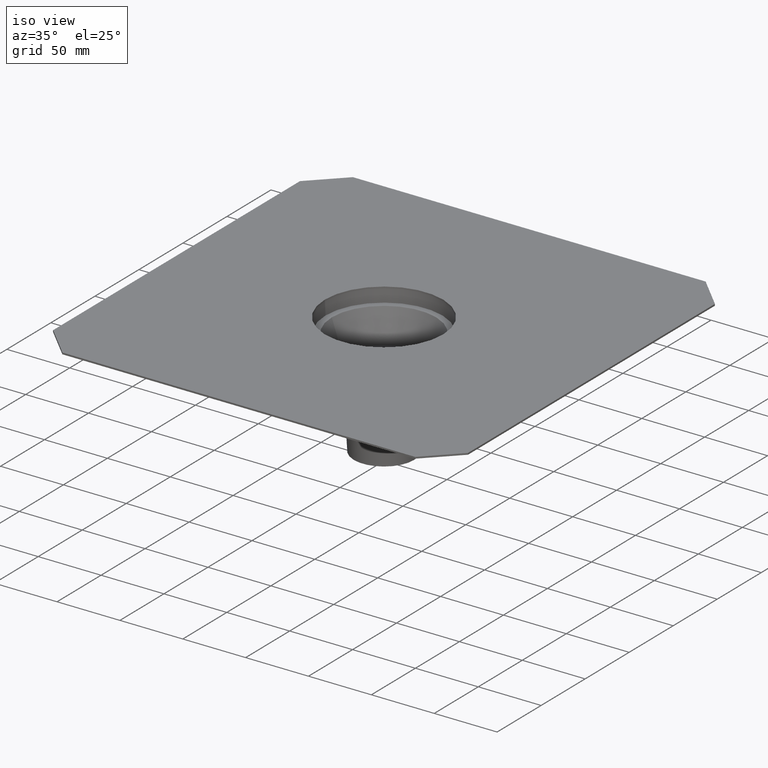
[diagram: clean part render]
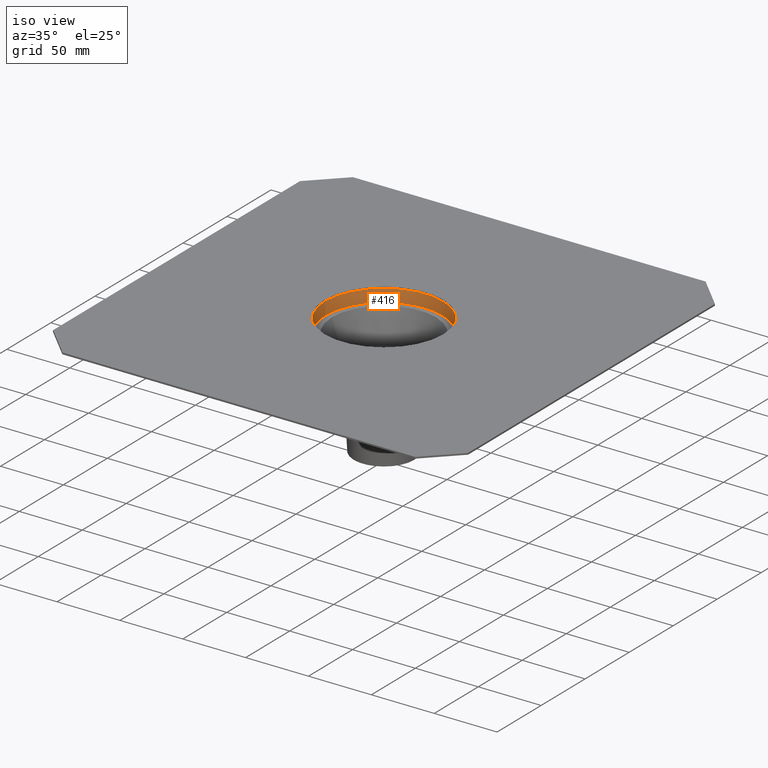
[diagram: same view with one face highlighted and labeled with its STEP entity id]
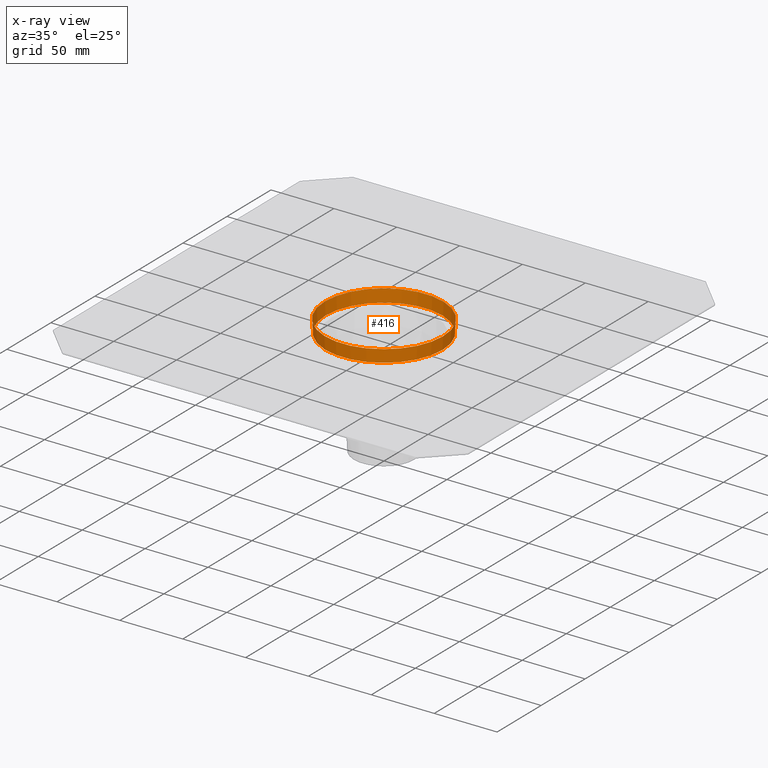
[diagram: x-ray of the same camera — body ghosted, the highlighted face saturated]
A machine part, iso view. The second image highlights one B-rep face of the part: STEP entity #416.
The next image is the same camera in x-ray: the body ghosted, the highlighted face saturated — about 0% of this face is hidden behind the body in this view.
In plain terms, the highlighted conical surface has half-angle 2.862 deg.
Its self-contained STEP definition (entity closure, byte-faithful):
#20=CONICAL_SURFACE('',#465,47.,0.0499583957219435);
#30=CIRCLE('',#457,47.);
#35=CIRCLE('',#466,46.5);
#95=ORIENTED_EDGE('',*,*,#178,.T.);
#96=ORIENTED_EDGE('',*,*,#171,.F.);
#171=EDGE_CURVE('',#211,#211,#30,.T.);
#178=EDGE_CURVE('',#216,#216,#35,.T.);
#211=VERTEX_POINT('',#682);
#216=VERTEX_POINT('',#698);
#295=EDGE_LOOP('',(#95));
#296=EDGE_LOOP('',(#96));
#349=FACE_BOUND('',#295,.T.);
#350=FACE_BOUND('',#296,.T.);
#416=ADVANCED_FACE('',(#349,#350),#20,.F.);
#457=AXIS2_PLACEMENT_3D('',#681,#542,#543);
#465=AXIS2_PLACEMENT_3D('',#696,#560,#561);
#466=AXIS2_PLACEMENT_3D('',#697,#562,#563);
#542=DIRECTION('',(0.,0.,-1.));
#543=DIRECTION('',(-1.,0.,0.));
#560=DIRECTION('',(0.,0.,1.));
#561=DIRECTION('',(1.,0.,0.));
#562=DIRECTION('',(0.,0.,-1.));
#563=DIRECTION('',(-1.,0.,0.));
#681=CARTESIAN_POINT('',(0.,0.,0.));
#682=CARTESIAN_POINT('',(-47.,0.,0.));
#696=CARTESIAN_POINT('',(0.,0.,0.));
#697=CARTESIAN_POINT('',(0.,0.,-10.));
#698=CARTESIAN_POINT('',(-46.5,0.,-10.));